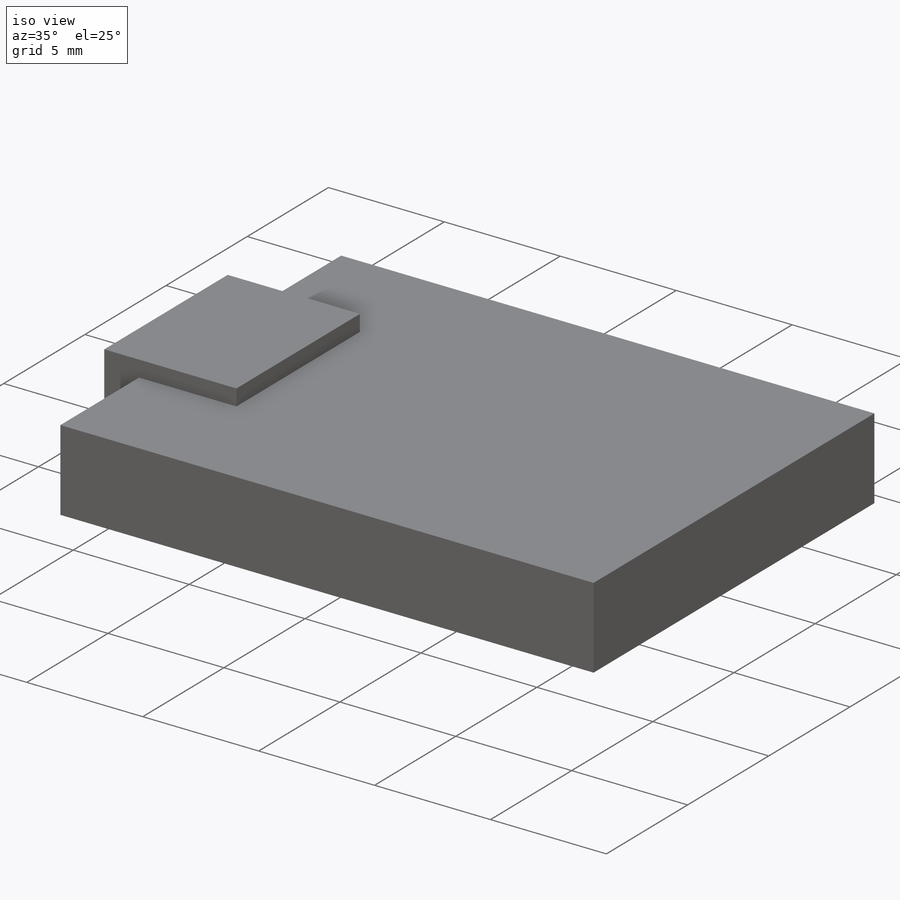
[diagram: iso view]
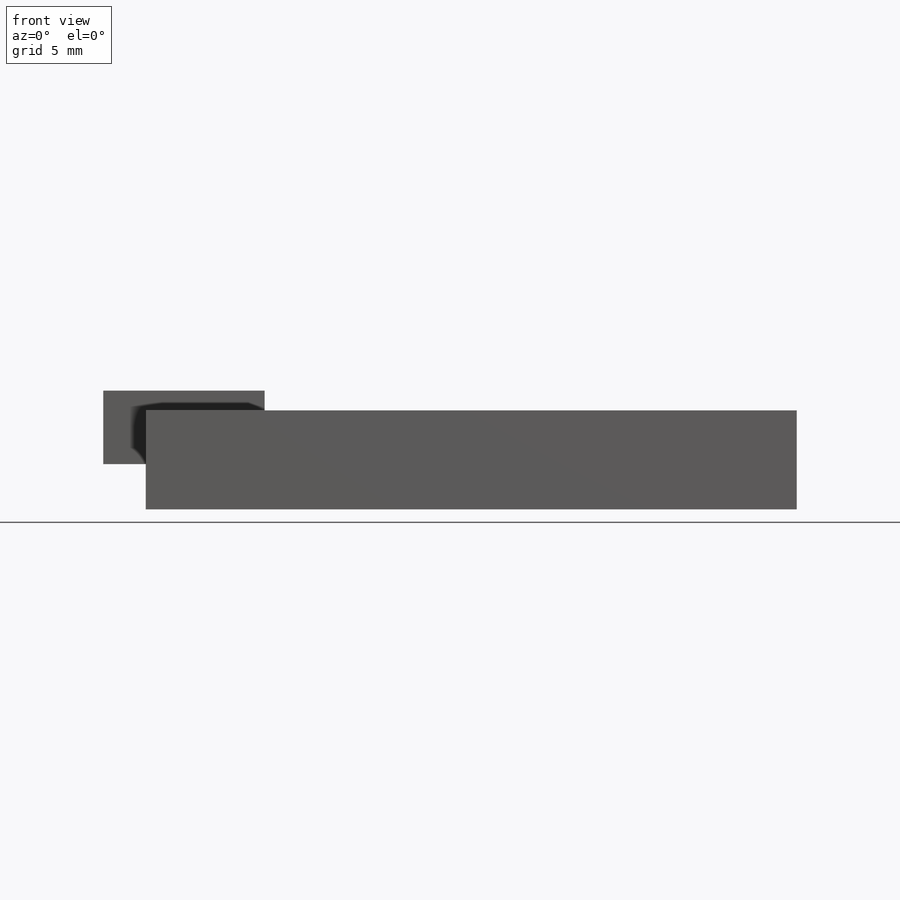
[diagram: front view]
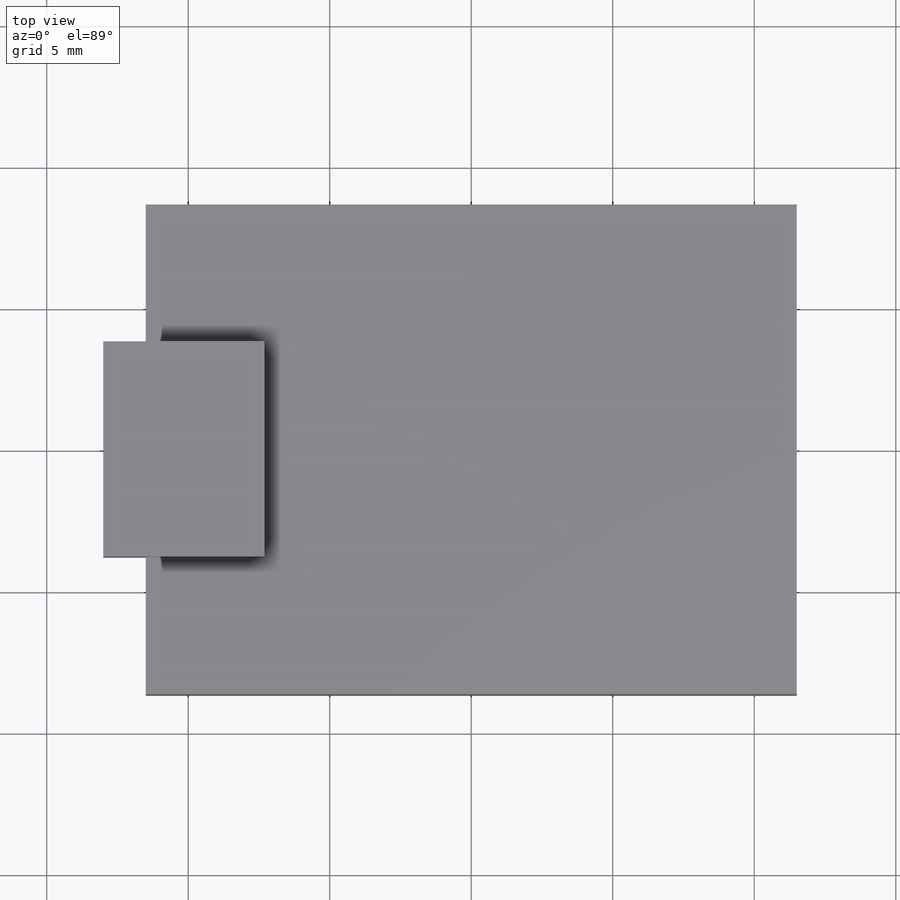
[diagram: top view]
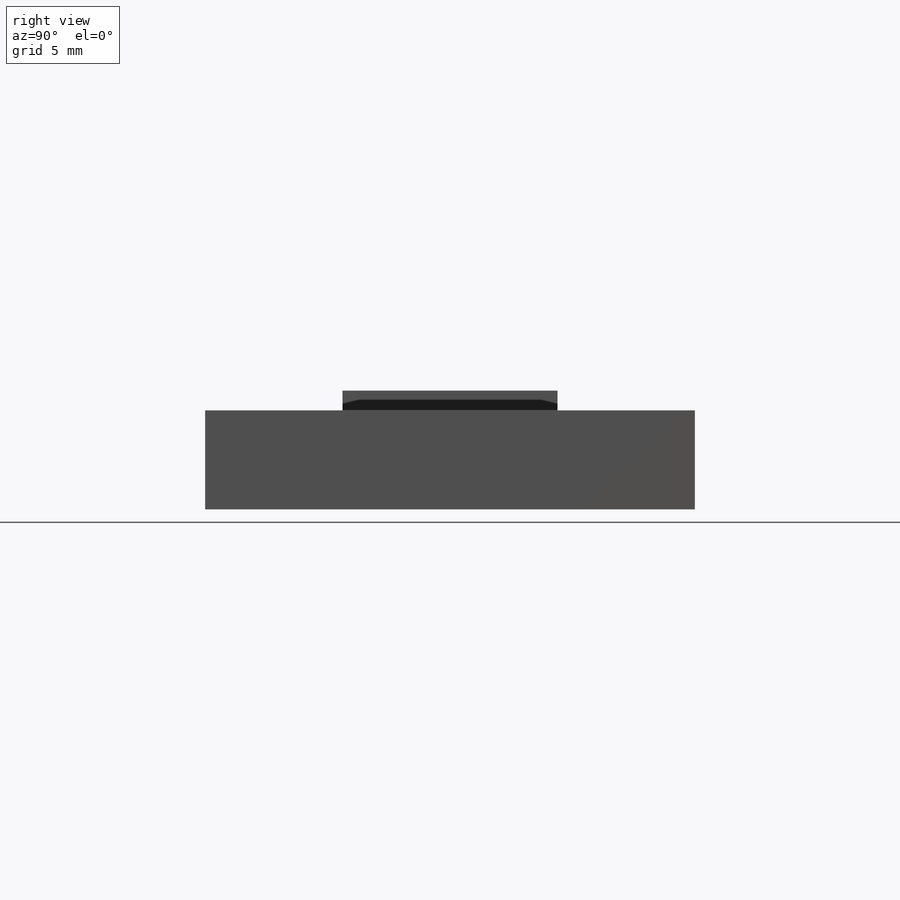
[diagram: right view]
SOLIDWORKS PART (.sldprt)
format: sldprt  version: not decoded by parser v0  size: 382,464 bytes
history: native  units: mm
features: plane x3, sketch x3, extrude x3, material x1 (+10 scaffold rows collapsed)
feature tree (20):
  scaffold x10  (default folders/planes/origin — collapsed)
  material  "Материал <не указан>"
  plane  "Спереди"
  plane  "Сверху"
  plane  "Справа"
  sketch  "Эскиз1"  dims[c1.D1=11.5mm c1.D2=9.0mm c2.D1=17.3mm]
  extrude  "Бобышка-Вытянуть1"  Depth=3.5mm
  sketch  "Эскиз2"  dims[D1=3.8mm D2=~2.850051mm]
  extrude  "Бобышка-Вытянуть2"  Depth=0.7mm
  sketch  "Эскиз3"  dims[D1=7.6mm D2=~1.500051mm]
  extrude  "Бобышка-Вытянуть3"  Depth=1.9mm
decode coverage: 6 of 6 modeling features carry decoded parameters
note: ~ marks probable driven/reference dimensions
note: suppression state not decoded; provenance and decode notes live in map.json
